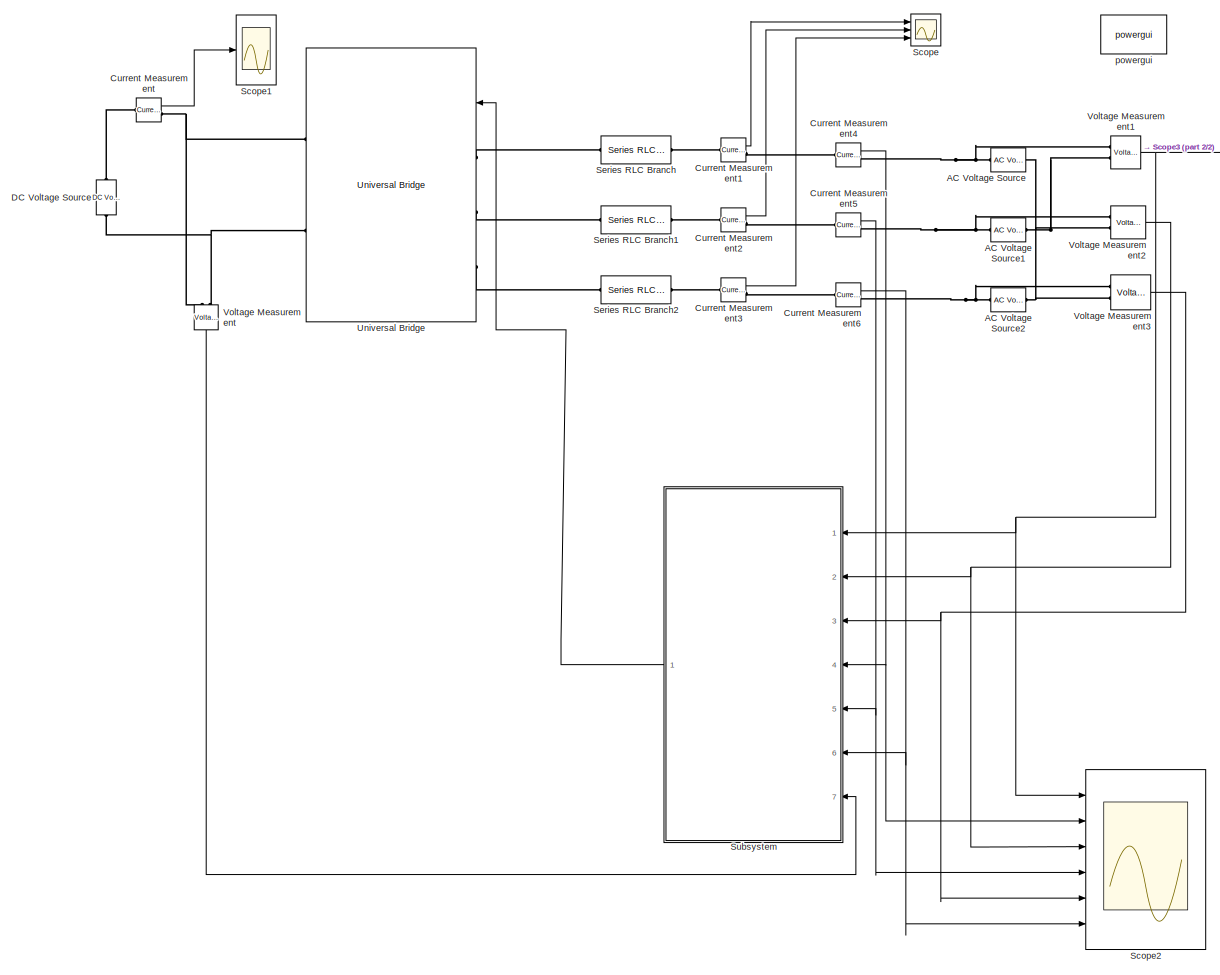
[diagram: root canvas - part 1/2, most of the canvas]
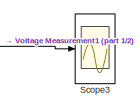
[diagram: root canvas - part 2/2, top right region]
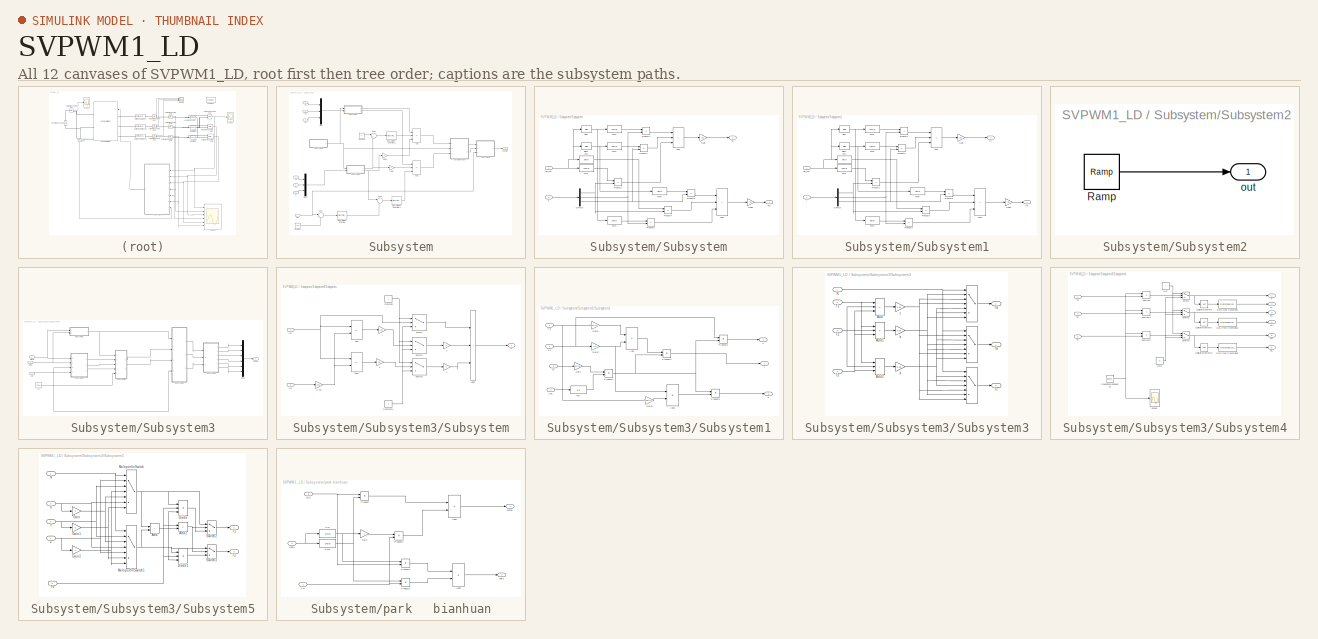
[diagram: thumbnail index - all 12 canvases of the model, root first then tree order]
MODEL SVPWM1_LD
KIND model
BLOCK [Reference] AC Voltage Source  REF=powerlib/Electrical\nSources/AC Voltage Source
  Amplitude = 380
  BusType = swing
  Frequency = 50
  Measurements = None
  Phase = 90
  Ports = [0, 0, 0, 0, 0, 1, 1]
  Pref = 10e3
  Qmax = +inf
  Qmin = -inf
  Qref = 0
  RTWMemSecDataConstants = Inherit from model
  RTWMemSecDataInternal = Inherit from model
  RTWMemSecDataParameters = Inherit from model
  RTWMemSecFuncExecute = Inherit from model
  RTWMemSecFuncInitTerm = Inherit from model
  SID = 1
  SampleTime = 0
  SourceBlock = powerlib/Electrical\nSources/AC Voltage Source
  SourceProductBaseCode = PS
  SourceType = AC Voltage Source
BLOCK [Reference] AC Voltage Source1  REF=powerlib/Electrical\nSources/AC Voltage Source
  Amplitude = 380
  BusType = swing
  Frequency = 50
  Measurements = None
  NameLocation = top
  Phase = 90-120
  Ports = [0, 0, 0, 0, 0, 1, 1]
  Pref = 10e3
  Qmax = +inf
  Qmin = -inf
  Qref = 0
  RTWMemSecDataConstants = Inherit from model
  RTWMemSecDataInternal = Inherit from model
  RTWMemSecDataParameters = Inherit from model
  RTWMemSecFuncExecute = Inherit from model
  RTWMemSecFuncInitTerm = Inherit from model
  SID = 2
  SampleTime = 0
  SourceBlock = powerlib/Electrical\nSources/AC Voltage Source
  SourceProductBaseCode = PS
  SourceType = AC Voltage Source
BLOCK [Reference] AC Voltage Source2  REF=powerlib/Electrical\nSources/AC Voltage Source
  Amplitude = 380
  BusType = swing
  Frequency = 50
  Measurements = None
  NameLocation = top
  Phase = 90+120
  Ports = [0, 0, 0, 0, 0, 1, 1]
  Pref = 10e3
  Qmax = +inf
  Qmin = -inf
  Qref = 0
  RTWMemSecDataConstants = Inherit from model
  RTWMemSecDataInternal = Inherit from model
  RTWMemSecDataParameters = Inherit from model
  RTWMemSecFuncExecute = Inherit from model
  RTWMemSecFuncInitTerm = Inherit from model
  SID = 3
  SampleTime = 0
  SourceBlock = powerlib/Electrical\nSources/AC Voltage Source
  SourceProductBaseCode = PS
  SourceType = AC Voltage Source
BLOCK [Reference] Current Measurement  REF=powerlib/Measurements/Current Measurement
  OutputType = Complex
  PSBequivalent = 0
  PhasorSimulation = off
  Ports = [0, 1, 0, 0, 0, 1, 1]
  RTWMemSecDataConstants = Inherit from model
  RTWMemSecDataInternal = Inherit from model
  RTWMemSecDataParameters = Inherit from model
  RTWMemSecFuncExecute = Inherit from model
  RTWMemSecFuncInitTerm = Inherit from model
  SID = 4
  SourceBlock = powerlib/Measurements/Current Measurement
  SourceProductBaseCode = PS
  SourceType = Current Measurement
BLOCK [Reference] Current Measurement1  REF=powerlib/Measurements/Current Measurement
  OutputType = Complex
  PSBequivalent = 0
  PhasorSimulation = off
  Ports = [0, 1, 0, 0, 0, 1, 1]
  RTWMemSecDataConstants = Inherit from model
  RTWMemSecDataInternal = Inherit from model
  RTWMemSecDataParameters = Inherit from model
  RTWMemSecFuncExecute = Inherit from model
  RTWMemSecFuncInitTerm = Inherit from model
  SID = 5
  SourceBlock = powerlib/Measurements/Current Measurement
  SourceProductBaseCode = PS
  SourceType = Current Measurement
BLOCK [Reference] Current Measurement2  REF=powerlib/Measurements/Current Measurement
  OutputType = Complex
  PSBequivalent = 0
  PhasorSimulation = off
  Ports = [0, 1, 0, 0, 0, 1, 1]
  RTWMemSecDataConstants = Inherit from model
  RTWMemSecDataInternal = Inherit from model
  RTWMemSecDataParameters = Inherit from model
  RTWMemSecFuncExecute = Inherit from model
  RTWMemSecFuncInitTerm = Inherit from model
  SID = 6
  SourceBlock = powerlib/Measurements/Current Measurement
  SourceProductBaseCode = PS
  SourceType = Current Measurement
BLOCK [Reference] Current Measurement3  REF=powerlib/Measurements/Current Measurement
  OutputType = Complex
  PSBequivalent = 0
  PhasorSimulation = off
  Ports = [0, 1, 0, 0, 0, 1, 1]
  RTWMemSecDataConstants = Inherit from model
  RTWMemSecDataInternal = Inherit from model
  RTWMemSecDataParameters = Inherit from model
  RTWMemSecFuncExecute = Inherit from model
  RTWMemSecFuncInitTerm = Inherit from model
  SID = 7
  SourceBlock = powerlib/Measurements/Current Measurement
  SourceProductBaseCode = PS
  SourceType = Current Measurement
BLOCK [Reference] Current Measurement4  REF=powerlib/Measurements/Current Measurement
  OutputType = Complex
  PSBequivalent = 0
  PhasorSimulation = off
  Ports = [0, 1, 0, 0, 0, 1, 1]
  RTWMemSecDataConstants = Inherit from model
  RTWMemSecDataInternal = Inherit from model
  RTWMemSecDataParameters = Inherit from model
  RTWMemSecFuncExecute = Inherit from model
  RTWMemSecFuncInitTerm = Inherit from model
  SID = 8
  SourceBlock = powerlib/Measurements/Current Measurement
  SourceProductBaseCode = PS
  SourceType = Current Measurement
BLOCK [Reference] Current Measurement5  REF=powerlib/Measurements/Current Measurement
  OutputType = Complex
  PSBequivalent = 0
  PhasorSimulation = off
  Ports = [0, 1, 0, 0, 0, 1, 1]
  RTWMemSecDataConstants = Inherit from model
  RTWMemSecDataInternal = Inherit from model
  RTWMemSecDataParameters = Inherit from model
  RTWMemSecFuncExecute = Inherit from model
  RTWMemSecFuncInitTerm = Inherit from model
  SID = 9
  SourceBlock = powerlib/Measurements/Current Measurement
  SourceProductBaseCode = PS
  SourceType = Current Measurement
BLOCK [Reference] Current Measurement6  REF=powerlib/Measurements/Current Measurement
  OutputType = Complex
  PSBequivalent = 0
  PhasorSimulation = off
  Ports = [0, 1, 0, 0, 0, 1, 1]
  RTWMemSecDataConstants = Inherit from model
  RTWMemSecDataInternal = Inherit from model
  RTWMemSecDataParameters = Inherit from model
  RTWMemSecFuncExecute = Inherit from model
  RTWMemSecFuncInitTerm = Inherit from model
  SID = 10
  SourceBlock = powerlib/Measurements/Current Measurement
  SourceProductBaseCode = PS
  SourceType = Current Measurement
BLOCK [Reference] DC Voltage Source  REF=powerlib/Electrical\nSources/DC Voltage Source
  Amplitude = 100
  Measurements = None
  NameLocation = right
  Ports = [0, 0, 0, 0, 0, 1, 1]
  RTWMemSecDataConstants = Inherit from model
  RTWMemSecDataInternal = Inherit from model
  RTWMemSecDataParameters = Inherit from model
  RTWMemSecFuncExecute = Inherit from model
  RTWMemSecFuncInitTerm = Inherit from model
  SID = 11
  SourceBlock = powerlib/Electrical\nSources/DC Voltage Source
  SourceProductBaseCode = PS
  SourceType = DC Voltage Source
BLOCK [Scope] Scope
  Floating = off
  NumInputPorts = 3
  Ports = [3]
  SID = 12
  ScopeSpecificationString = C++SS(StrPVP('Location','[5, 48, 1365, 727]'),StrPVP('Open','off'),StrPVP('ZoomMode','xonly'),MxPVP('AxesTitles',54,'struct(''axes1'',''%<SignalLabel>'',''axes2'',''%<SignalLabel>'',''axes3'',''%<SignalLabel>'')'),StrPVP('YMin','-5~-5~-5'),StrPVP('YMax','5~5~5'),StrPVP('DataFormat','StructureWithTime'),StrPVP('LimitDataPoints','off'),StrPVP('BlockParamSampleTime','0'),StrPVP('Decimation','1'),StrP...<+34ch>
BLOCK [Scope] Scope1
  Floating = off
  NumInputPorts = 1
  Ports = [1]
  SID = 13
  ScopeSpecificationString = Simulink.scopes.TimeScopeBlockCfg('CurrentConfiguration', extmgr.ConfigurationSet(extmgr.Configuration('Core','General UI',true),extmgr.Configuration('Core','Source UI',true),extmgr.Configuration('Sources','WiredSimulink',true,'DataLoggingVariableName','ScopeData1','DataLoggingSaveFormat','StructureWithTime','DataLoggingDecimation','1','DataLoggingDecimateData',true),extmgr.Configuration('Visuals'...<+1669ch>
BLOCK [Scope] Scope2
  Floating = off
  NumInputPorts = 6
  Ports = [6]
  SID = 14
  ScopeSpecificationString = C++SS(StrPVP('Location','[5, 48, 1365, 727]'),StrPVP('Open','off'),StrPVP('ZoomMode','xonly'),MxPVP('AxesTitles',54,'struct(''axes1'',''%<SignalLabel>'',''axes2'',''%<SignalLabel>'',''axes3'',''%<SignalLabel>'',''axes4'',''%<SignalLabel>'',''axes5'',''%<SignalLabel>'',''axes6'',''%<SignalLabel>'')'),StrPVP('YMin','-5~-5~-5~-5~-5~-5'),StrPVP('YMax','5~5~5~5~5~5'),StrPVP('SaveName','ScopeData2'),Str...<+168ch>
BLOCK [Scope] Scope3
  Floating = off
  NumInputPorts = 1
  Ports = [1]
  SID = 15
  ScopeSpecificationString = C++SS(StrPVP('Location','[5, 48, 1365, 727]'),StrPVP('Open','off'),StrPVP('ZoomMode','yonly'),MxPVP('AxesTitles',54,'struct(''axes1'',''%<SignalLabel>'')'),StrPVP('YMin','327.5'),StrPVP('YMax','380'),StrPVP('SaveName','ScopeData4'),StrPVP('DataFormat','StructureWithTime'),StrPVP('LimitDataPoints','off'),StrPVP('BlockParamSampleTime','0'),StrPVP('Decimation','1'),StrPVP('BlockParamSampleInput','off...<+3ch>
BLOCK [Reference] Series RLC Branch  REF=powerlib/Elements/Series RLC Branch
  BranchType = RL
  Capacitance = 1.0
  Inductance = 6e-3
  InitialCurrent = 0
  InitialVoltage = 0
  LConnTagsString = __new0
  Measurements = None
  Ports = [0, 0, 0, 0, 0, 1, 1]
  RConnTagsString = __new0
  Resistance = 1
  SID = 16
  SetiL0 = off
  Setx0 = off
  SourceBlock = powerlib/Elements/Series RLC Branch
  SourceProductBaseCode = PS
  SourceType = Series RLC Branch
BLOCK [Reference] Series RLC Branch1  REF=powerlib/Elements/Series RLC Branch
  BranchType = RL
  Capacitance = 1.0
  Inductance = 6e-3
  InitialCurrent = 0
  InitialVoltage = 0
  LConnTagsString = __new0
  Measurements = None
  Ports = [0, 0, 0, 0, 0, 1, 1]
  RConnTagsString = __new0
  Resistance = 1
  SID = 17
  SetiL0 = off
  Setx0 = off
  SourceBlock = powerlib/Elements/Series RLC Branch
  SourceProductBaseCode = PS
  SourceType = Series RLC Branch
BLOCK [Reference] Series RLC Branch2  REF=powerlib/Elements/Series RLC Branch
  BranchType = RL
  Capacitance = 1.0
  Inductance = 6e-3
  InitialCurrent = 0
  InitialVoltage = 0
  LConnTagsString = __new0
  Measurements = None
  Ports = [0, 0, 0, 0, 0, 1, 1]
  RConnTagsString = __new0
  Resistance = 1
  SID = 18
  SetiL0 = off
  Setx0 = off
  SourceBlock = powerlib/Elements/Series RLC Branch
  SourceProductBaseCode = PS
  SourceType = Series RLC Branch
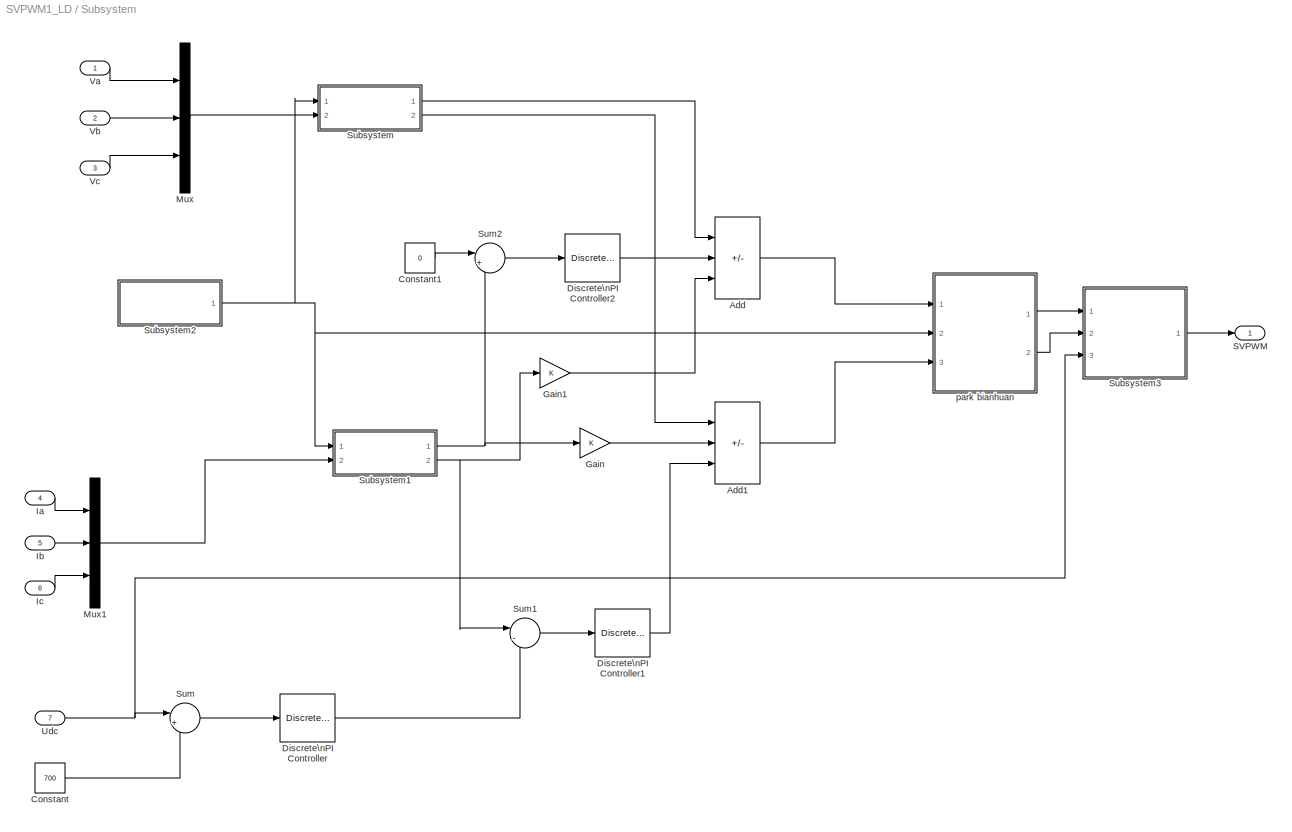
BLOCK [SubSystem] Subsystem
  Ports = [7, 1]
  RequestExecContextInheritance = off
  SID = 19
BLOCK [Sum] Subsystem/Add
  IconShape = rectangular
  Inputs = +--
  Ports = [3, 1]
  SID = 27
BLOCK [Sum] Subsystem/Add1
  IconShape = rectangular
  Inputs = ++-
  Ports = [3, 1]
  SID = 28
BLOCK [Constant] Subsystem/Constant
  SID = 29
  Value = 700
BLOCK [Constant] Subsystem/Constant1
  SID = 30
  Value = 0
BLOCK [Reference] Subsystem/Discrete\nPI Controller  REF=powerlib_extras/Discrete \nControl Blocks/Discrete\nPI Controller
  Init = 0
  Ki = 1
  Kp = 0.1
  Par_Limits = [1e6 -1e6]
  Ports = [1, 1]
  RTWMemSecDataConstants = Inherit from model
  RTWMemSecDataInternal = Inherit from model
  RTWMemSecDataParameters = Inherit from model
  RTWMemSecFuncExecute = Inherit from model
  RTWMemSecFuncInitTerm = Inherit from model
  SID = 31
  SourceBlock = powerlib_extras/Discrete \nControl Blocks/Discrete\nPI Controller
  SourceProductBaseCode = PS
  SourceType = Discrete PI Controller
  Ts = 50e-6
BLOCK [Reference] Subsystem/Discrete\nPI Controller1  REF=powerlib_extras/Discrete \nControl Blocks/Discrete\nPI Controller
  Init = 0
  Ki = 1
  Kp = 0.1
  Par_Limits = [1e6 -1e6]
  Ports = [1, 1]
  RTWMemSecDataConstants = Inherit from model
  RTWMemSecDataInternal = Inherit from model
  RTWMemSecDataParameters = Inherit from model
  RTWMemSecFuncExecute = Inherit from model
  RTWMemSecFuncInitTerm = Inherit from model
  SID = 32
  SourceBlock = powerlib_extras/Discrete \nControl Blocks/Discrete\nPI Controller
  SourceProductBaseCode = PS
  SourceType = Discrete PI Controller
  Ts = 50e-6
BLOCK [Reference] Subsystem/Discrete\nPI Controller2  REF=powerlib_extras/Discrete \nControl Blocks/Discrete\nPI Controller
  Init = 0
  Ki = 1
  Kp = 0.1
  Par_Limits = [1e6 -1e6]
  Ports = [1, 1]
  RTWMemSecDataConstants = Inherit from model
  RTWMemSecDataInternal = Inherit from model
  RTWMemSecDataParameters = Inherit from model
  RTWMemSecFuncExecute = Inherit from model
  RTWMemSecFuncInitTerm = Inherit from model
  SID = 33
  SourceBlock = powerlib_extras/Discrete \nControl Blocks/Discrete\nPI Controller
  SourceProductBaseCode = PS
  SourceType = Discrete PI Controller
  Ts = 50e-6
BLOCK [Gain] Subsystem/Gain
  SID = 34
BLOCK [Gain] Subsystem/Gain1
  SID = 35
BLOCK [Inport] Subsystem/Ia
  Port = 4
  SID = 23
BLOCK [Inport] Subsystem/Ib
  Port = 5
  SID = 24
BLOCK [Inport] Subsystem/Ic
  Port = 6
  SID = 25
BLOCK [Mux] Subsystem/Mux
  DisplayOption = bar
  Inputs = 3
  Ports = [3, 1]
  SID = 36
BLOCK [Mux] Subsystem/Mux1
  DisplayOption = bar
  Inputs = 3
  Ports = [3, 1]
  SID = 37
BLOCK [Outport] Subsystem/SVPWM
  SID = 212
BLOCK [SubSystem] Subsystem/Subsystem
  Ports = [2, 2]
  RequestExecContextInheritance = off
  SID = 38
BLOCK [Sum] Subsystem/Subsystem/Add1
  IconShape = rectangular
  Inputs = +++
  Ports = [3, 1]
  SID = 41
BLOCK [Sum] Subsystem/Subsystem/Add2
  IconShape = rectangular
  Inputs = +++
  Ports = [3, 1]
  SID = 42
BLOCK [Bias] Subsystem/Subsystem/Bias
  Bias = -2*pi/3
  SID = 43
  SaturateOnIntegerOverflow = off
BLOCK [Bias] Subsystem/Subsystem/Bias1
  Bias = 2*pi/3
  SID = 44
  SaturateOnIntegerOverflow = off
BLOCK [Demux] Subsystem/Subsystem/Demux
  Outputs = 3
  Ports = [1, 3]
  SID = 45
BLOCK [Fcn] Subsystem/Subsystem/Fcn
  Expr = sin(u)
  SID = 46
BLOCK [Fcn] Subsystem/Subsystem/Fcn1
  Expr = cos(u)
  SID = 47
BLOCK [Fcn] Subsystem/Subsystem/Fcn2
  Expr = cos(u)
  SID = 48
BLOCK [Fcn] Subsystem/Subsystem/Fcn3
  Expr = cos(u)
  SID = 49
BLOCK [Fcn] Subsystem/Subsystem/Fcn4
  Expr = sin(u)
  SID = 50
BLOCK [Fcn] Subsystem/Subsystem/Fcn5
  Expr = sin(u)
  SID = 51
BLOCK [Gain] Subsystem/Subsystem/Gain
  Gain = 2/3
  SID = 52
BLOCK [Gain] Subsystem/Subsystem/Gain1
  Gain = -2/3
  SID = 53
BLOCK [Product] Subsystem/Subsystem/Product1
  Ports = [2, 1]
  RndMeth = Zero
  SID = 54
BLOCK [Product] Subsystem/Subsystem/Product2
  Ports = [2, 1]
  RndMeth = Zero
  SID = 55
BLOCK [Product] Subsystem/Subsystem/Product3
  Ports = [2, 1]
  RndMeth = Zero
  SID = 56
BLOCK [Product] Subsystem/Subsystem/Product4
  Ports = [2, 1]
  RndMeth = Zero
  SID = 57
BLOCK [Product] Subsystem/Subsystem/Product5
  Ports = [2, 1]
  RndMeth = Zero
  SID = 58
BLOCK [Product] Subsystem/Subsystem/Product6
  Ports = [2, 1]
  RndMeth = Zero
  SID = 59
BLOCK [Outport] Subsystem/Subsystem/Vd
  Port = 2
  SID = 61
BLOCK [Outport] Subsystem/Subsystem/Vq1
  SID = 60
BLOCK [Inport] Subsystem/Subsystem/sin_cos
  SID = 39
BLOCK [Inport] Subsystem/Subsystem/v
  Port = 2
  SID = 40
BLOCK [SubSystem] Subsystem/Subsystem1
  Ports = [2, 2]
  RequestExecContextInheritance = off
  SID = 62
BLOCK [Sum] Subsystem/Subsystem1/Add1
  IconShape = rectangular
  Inputs = +++
  Ports = [3, 1]
  SID = 65
BLOCK [Sum] Subsystem/Subsystem1/Add2
  IconShape = rectangular
  Inputs = +++
  Ports = [3, 1]
  SID = 66
BLOCK [Bias] Subsystem/Subsystem1/Bias
  Bias = -2*pi/3
  SID = 67
  SaturateOnIntegerOverflow = off
BLOCK [Bias] Subsystem/Subsystem1/Bias1
  Bias = 2*pi/3
  SID = 68
  SaturateOnIntegerOverflow = off
BLOCK [Demux] Subsystem/Subsystem1/Demux
  Outputs = 3
  Ports = [1, 3]
  SID = 69
BLOCK [Fcn] Subsystem/Subsystem1/Fcn
  Expr = sin(u)
  SID = 70
BLOCK [Fcn] Subsystem/Subsystem1/Fcn1
  Expr = cos(u)
  SID = 71
BLOCK [Fcn] Subsystem/Subsystem1/Fcn2
  Expr = cos(u)
  SID = 72
BLOCK [Fcn] Subsystem/Subsystem1/Fcn3
  Expr = cos(u)
  SID = 73
BLOCK [Fcn] Subsystem/Subsystem1/Fcn4
  Expr = sin(u)
  SID = 74
BLOCK [Fcn] Subsystem/Subsystem1/Fcn5
  Expr = sin(u)
  SID = 75
BLOCK [Gain] Subsystem/Subsystem1/Gain
  Gain = 2/3
  SID = 76
BLOCK [Gain] Subsystem/Subsystem1/Gain1
  Gain = -2/3
  SID = 77
BLOCK [Inport] Subsystem/Subsystem1/I
  Port = 2
  SID = 64
BLOCK [Outport] Subsystem/Subsystem1/Id
  Port = 2
  SID = 85
BLOCK [Outport] Subsystem/Subsystem1/Iq1
  SID = 84
BLOCK [Product] Subsystem/Subsystem1/Product1
  Ports = [2, 1]
  RndMeth = Zero
  SID = 78
BLOCK [Product] Subsystem/Subsystem1/Product2
  Ports = [2, 1]
  RndMeth = Zero
  SID = 79
BLOCK [Product] Subsystem/Subsystem1/Product3
  Ports = [2, 1]
  RndMeth = Zero
  SID = 80
BLOCK [Product] Subsystem/Subsystem1/Product4
  Ports = [2, 1]
  RndMeth = Zero
  SID = 81
BLOCK [Product] Subsystem/Subsystem1/Product5
  Ports = [2, 1]
  RndMeth = Zero
  SID = 82
BLOCK [Product] Subsystem/Subsystem1/Product6
  Ports = [2, 1]
  RndMeth = Zero
  SID = 83
BLOCK [Inport] Subsystem/Subsystem1/sin_cos
  SID = 63
BLOCK [SubSystem] Subsystem/Subsystem2
  Ports = [0, 1]
  RequestExecContextInheritance = off
  SID = 86
BLOCK [Reference] Subsystem/Subsystem2/Ramp  REF=simulink/Sources/Ramp
  InitialOutput = 0
  Ports = [0, 1]
  RTWMemSecDataConstants = Inherit from model
  RTWMemSecDataInternal = Inherit from model
  RTWMemSecDataParameters = Inherit from model
  RTWMemSecFuncExecute = Inherit from model
  RTWMemSecFuncInitTerm = Inherit from model
  SID = 87
  SourceBlock = simulink/Sources/Ramp
  SourceProductBaseCode = SL
  SourceType = Ramp
  VectorParams1D = on
  slope = 100*pi
  start = 0
BLOCK [Outport] Subsystem/Subsystem2/out
  SID = 88
BLOCK [SubSystem] Subsystem/Subsystem3
  Ports = [3, 1]
  RequestExecContextInheritance = off
  SID = 89
BLOCK [Mux] Subsystem/Subsystem3/Mux1
  DisplayOption = bar
  Inputs = 6
  Ports = [6, 1]
  SID = 93
BLOCK [SubSystem] Subsystem/Subsystem3/Subsystem
  Ports = [2, 1]
  RequestExecContextInheritance = off
  SID = 94
BLOCK [Gain] Subsystem/Subsystem3/Subsystem/1
  Gain = 0.5
  SID = 97
BLOCK [Gain] Subsystem/Subsystem3/Subsystem/1.732
  Gain = 1.732
  SID = 98
BLOCK [Gain] Subsystem/Subsystem3/Subsystem/2
  Gain = 0.5
  SID = 99
BLOCK [Gain] Subsystem/Subsystem3/Subsystem/3
  Gain = 2
  SID = 100
BLOCK [Gain] Subsystem/Subsystem3/Subsystem/4
  Gain = 4
  SID = 101
BLOCK [Sum] Subsystem/Subsystem3/Subsystem/Add
  IconShape = rectangular
  Inputs = -+
  Ports = [2, 1]
  SID = 102
BLOCK [Sum] Subsystem/Subsystem3/Subsystem/Add1
  IconShape = rectangular
  Inputs = --
  Ports = [2, 1]
  SID = 103
BLOCK [Sum] Subsystem/Subsystem3/Subsystem/Add2
  IconShape = rectangular
  Inputs = +++
  Ports = [3, 1]
  SID = 104
BLOCK [Constant] Subsystem/Subsystem3/Subsystem/Constant
  SID = 105
BLOCK [Constant] Subsystem/Subsystem3/Subsystem/Constant1
  SID = 106
  Value = 0
BLOCK [Inport] Subsystem/Subsystem3/Subsystem/In1
  SID = 95
BLOCK [Inport] Subsystem/Subsystem3/Subsystem/In2
  Port = 2
  SID = 96
BLOCK [Outport] Subsystem/Subsystem3/Subsystem/N
  SID = 110
BLOCK [Switch] Subsystem/Subsystem3/Subsystem/Switch
  Criteria = u2 > Threshold
  InputSameDT = off
  SID = 107
  SaturateOnIntegerOverflow = off
BLOCK [Switch] Subsystem/Subsystem3/Subsystem/Switch1
  Criteria = u2 > Threshold
  InputSameDT = off
  SID = 108
  SaturateOnIntegerOverflow = off
BLOCK [Switch] Subsystem/Subsystem3/Subsystem/Switch2
  Criteria = u2 > Threshold
  InputSameDT = off
  SID = 109
  SaturateOnIntegerOverflow = off
BLOCK [SubSystem] Subsystem/Subsystem3/Subsystem1
  Ports = [4, 3]
  RequestExecContextInheritance = off
  SID = 111
BLOCK [Sum] Subsystem/Subsystem3/Subsystem1/Add
  IconShape = rectangular
  Ports = [2, 1]
  SID = 116
BLOCK [Sum] Subsystem/Subsystem3/Subsystem1/Add1
  IconShape = rectangular
  Ports = [2, 1]
  SID = 117
BLOCK [Fcn] Subsystem/Subsystem3/Subsystem1/Fcn
  Expr = 1/u
  SID = 118
BLOCK [Gain] Subsystem/Subsystem3/Subsystem1/Gain
  Gain = sqrt(3)
  SID = 119
BLOCK [Gain] Subsystem/Subsystem3/Subsystem1/Gain1
  Gain = sqrt(3)/2
  SID = 120
BLOCK [Gain] Subsystem/Subsystem3/Subsystem1/Gain2
  Gain = 1/2
  SID = 121
BLOCK [Gain] Subsystem/Subsystem3/Subsystem1/Gain3
  Gain = -sqrt(3)/2
  SID = 122
BLOCK [Product] Subsystem/Subsystem3/Subsystem1/Product1
  Ports = [2, 1]
  RndMeth = Zero
  SID = 123
BLOCK [Product] Subsystem/Subsystem3/Subsystem1/Product2
  Ports = [2, 1]
  RndMeth = Zero
  SID = 124
BLOCK [Product] Subsystem/Subsystem3/Subsystem1/Product3
  Ports = [2, 1]
  RndMeth = Zero
  SID = 125
BLOCK [Product] Subsystem/Subsystem3/Subsystem1/Product4
  Ports = [2, 1]
  RndMeth = Zero
  SID = 126
BLOCK [Inport] Subsystem/Subsystem3/Subsystem1/Ts
  Port = 3
  SID = 114
BLOCK [Inport] Subsystem/Subsystem3/Subsystem1/Udc
  Port = 4
  SID = 115
BLOCK [Inport] Subsystem/Subsystem3/Subsystem1/Va
  SID = 112
BLOCK [Inport] Subsystem/Subsystem3/Subsystem1/Vb
  Port = 2
  SID = 113
BLOCK [Outport] Subsystem/Subsystem3/Subsystem1/X
  SID = 127
BLOCK [Outport] Subsystem/Subsystem3/Subsystem1/Y
  Port = 2
  SID = 128
BLOCK [Outport] Subsystem/Subsystem3/Subsystem1/Z
  Port = 3
  SID = 129
BLOCK [SubSystem] Subsystem/Subsystem3/Subsystem3
  Ports = [4, 3]
  RequestExecContextInheritance = off
  SID = 130
BLOCK [MultiPortSwitch] Subsystem/Subsystem3/Subsystem3/ 
  InputSameDT = off
  Inputs = 6
  Ports = [7, 1]
  SID = 135
  SaturateOnIntegerOverflow = off
BLOCK [MultiPortSwitch] Subsystem/Subsystem3/Subsystem3/  
  InputSameDT = off
  Inputs = 6
  Ports = [7, 1]
  SID = 136
  SaturateOnIntegerOverflow = off
BLOCK [MultiPortSwitch] Subsystem/Subsystem3/Subsystem3/    
  InputSameDT = off
  Inputs = 6
  Ports = [7, 1]
  SID = 137
  SaturateOnIntegerOverflow = off
BLOCK [Sum] Subsystem/Subsystem3/Subsystem3/Add
  IconShape = rectangular
  Inputs = --+
  Ports = [3, 1]
  SID = 138
BLOCK [Sum] Subsystem/Subsystem3/Subsystem3/Add1
  IconShape = rectangular
  Inputs = +-+
  Ports = [3, 1]
  SID = 139
BLOCK [Sum] Subsystem/Subsystem3/Subsystem3/Add2
  IconShape = rectangular
  Inputs = +++
  Ports = [3, 1]
  SID = 140
BLOCK [Inport] Subsystem/Subsystem3/Subsystem3/N
  SID = 131
BLOCK [Inport] Subsystem/Subsystem3/Subsystem3/T1
  Port = 2
  SID = 132
BLOCK [Inport] Subsystem/Subsystem3/Subsystem3/T2
  Port = 3
  SID = 133
BLOCK [Outport] Subsystem/Subsystem3/Subsystem3/Ta
  SID = 144
BLOCK [Outport] Subsystem/Subsystem3/Subsystem3/Tb
  Port = 2
  SID = 145
BLOCK [Outport] Subsystem/Subsystem3/Subsystem3/Tc
  Port = 3
  SID = 146
BLOCK [Inport] Subsystem/Subsystem3/Subsystem3/Ts
  Port = 4
  SID = 134
BLOCK [Gain] Subsystem/Subsystem3/Subsystem3/a
  Gain = 0.25
  SID = 141
BLOCK [Gain] Subsystem/Subsystem3/Subsystem3/b
  Gain = 0.25
  SID = 142
BLOCK [Gain] Subsystem/Subsystem3/Subsystem3/c
  Gain = 0.25
  SID = 143
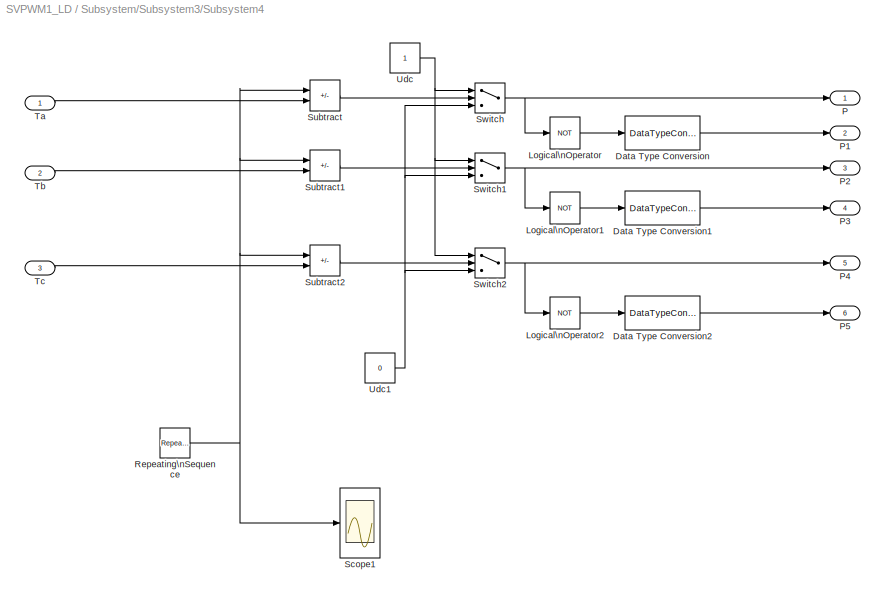
BLOCK [SubSystem] Subsystem/Subsystem3/Subsystem4
  Ports = [3, 6]
  RequestExecContextInheritance = off
  SID = 147
BLOCK [DataTypeConversion] Subsystem/Subsystem3/Subsystem4/Data Type Conversion
  OutDataTypeStr = double
  RndMeth = Floor
  SID = 151
  SaturateOnIntegerOverflow = off
BLOCK [DataTypeConversion] Subsystem/Subsystem3/Subsystem4/Data Type Conversion1
  OutDataTypeStr = double
  RndMeth = Floor
  SID = 152
  SaturateOnIntegerOverflow = off
BLOCK [DataTypeConversion] Subsystem/Subsystem3/Subsystem4/Data Type Conversion2
  OutDataTypeStr = double
  RndMeth = Floor
  SID = 153
  SaturateOnIntegerOverflow = off
BLOCK [Logic] Subsystem/Subsystem3/Subsystem4/Logical\nOperator
  AllPortsSameDT = off
  Operator = NOT
  OutDataTypeStr = boolean
  Ports = [1, 1]
  SID = 154
BLOCK [Logic] Subsystem/Subsystem3/Subsystem4/Logical\nOperator1
  AllPortsSameDT = off
  Operator = NOT
  OutDataTypeStr = boolean
  Ports = [1, 1]
  SID = 155
BLOCK [Logic] Subsystem/Subsystem3/Subsystem4/Logical\nOperator2
  AllPortsSameDT = off
  Operator = NOT
  OutDataTypeStr = boolean
  Ports = [1, 1]
  SID = 156
BLOCK [Outport] Subsystem/Subsystem3/Subsystem4/P
  SID = 167
BLOCK [Outport] Subsystem/Subsystem3/Subsystem4/P1
  Port = 2
  SID = 168
BLOCK [Outport] Subsystem/Subsystem3/Subsystem4/P2
  Port = 3
  SID = 169
BLOCK [Outport] Subsystem/Subsystem3/Subsystem4/P3
  Port = 4
  SID = 170
BLOCK [Outport] Subsystem/Subsystem3/Subsystem4/P4
  Port = 5
  SID = 171
BLOCK [Outport] Subsystem/Subsystem3/Subsystem4/P5
  Port = 6
  SID = 172
BLOCK [Reference] Subsystem/Subsystem3/Subsystem4/Repeating\nSequence  REF=simulink/Sources/Repeating\nSequence
  Ports = [0, 1]
  RTWMemSecDataConstants = Inherit from model
  RTWMemSecDataInternal = Inherit from model
  RTWMemSecDataParameters = Inherit from model
  RTWMemSecFuncExecute = Inherit from model
  RTWMemSecFuncInitTerm = Inherit from model
  SID = 157
  SourceBlock = simulink/Sources/Repeating\nSequence
  SourceProductBaseCode = SL
  SourceType = Repeating table
  rep_seq_t = [0  1e-4  2e-4]
  rep_seq_y = [0  1e-4   0]
BLOCK [Scope] Subsystem/Subsystem3/Subsystem4/Scope1
  Floating = off
  NumInputPorts = 1
  Ports = [1]
  SID = 158
  ScopeSpecificationString = C++SS(StrPVP('Location','[5, 48, 1365, 727]'),StrPVP('Open','off'),MxPVP('AxesTitles',54,'struct(''axes1'',''%<SignalLabel>'')'),StrPVP('SaveName','ScopeData3'),StrPVP('DataFormat','StructureWithTime'),StrPVP('BlockParamSampleTime','0'),StrPVP('LimitDataPoints','on'),StrPVP('Decimation','1'),StrPVP('BlockParamSampleInput','off'))
BLOCK [Sum] Subsystem/Subsystem3/Subsystem4/Subtract
  IconShape = rectangular
  Inputs = +-
  Ports = [2, 1]
  SID = 159
BLOCK [Sum] Subsystem/Subsystem3/Subsystem4/Subtract1
  IconShape = rectangular
  Inputs = +-
  Ports = [2, 1]
  SID = 160
BLOCK [Sum] Subsystem/Subsystem3/Subsystem4/Subtract2
  IconShape = rectangular
  Inputs = +-
  Ports = [2, 1]
  SID = 161
BLOCK [Switch] Subsystem/Subsystem3/Subsystem4/Switch
  InputSameDT = off
  SID = 162
  SaturateOnIntegerOverflow = off
BLOCK [Switch] Subsystem/Subsystem3/Subsystem4/Switch1
  InputSameDT = off
  SID = 163
  SaturateOnIntegerOverflow = off
BLOCK [Switch] Subsystem/Subsystem3/Subsystem4/Switch2
  InputSameDT = off
  SID = 164
  SaturateOnIntegerOverflow = off
BLOCK [Inport] Subsystem/Subsystem3/Subsystem4/Ta
  SID = 148
BLOCK [Inport] Subsystem/Subsystem3/Subsystem4/Tb
  Port = 2
  SID = 149
BLOCK [Inport] Subsystem/Subsystem3/Subsystem4/Tc
  Port = 3
  SID = 150
BLOCK [Constant] Subsystem/Subsystem3/Subsystem4/Udc
  SID = 165
BLOCK [Constant] Subsystem/Subsystem3/Subsystem4/Udc1
  SID = 166
  Value = 0
BLOCK [SubSystem] Subsystem/Subsystem3/Subsystem5
  Ports = [5, 2]
  RequestExecContextInheritance = off
  SID = 173
BLOCK [Sum] Subsystem/Subsystem3/Subsystem5/Add
  IconShape = rectangular
  Ports = [2, 1]
  SID = 179
BLOCK [Sum] Subsystem/Subsystem3/Subsystem5/Add2
  IconShape = rectangular
  Inputs = +-
  Ports = [2, 1]
  SID = 180
BLOCK [Product] Subsystem/Subsystem3/Subsystem5/Divide
  Inputs = **/
  Ports = [3, 1]
  SID = 181
BLOCK [Product] Subsystem/Subsystem3/Subsystem5/Divide1
  Inputs = **/
  Ports = [3, 1]
  SID = 182
BLOCK [Gain] Subsystem/Subsystem3/Subsystem5/Gain
  Gain = -1
  SID = 183
BLOCK [Gain] Subsystem/Subsystem3/Subsystem5/Gain1
  Gain = -1
  SID = 184
BLOCK [Gain] Subsystem/Subsystem3/Subsystem5/Gain2
  Gain = -1
  SID = 185
BLOCK [MultiPortSwitch] Subsystem/Subsystem3/Subsystem5/Multiport\nSwitch
  InputSameDT = off
  Inputs = 6
  Ports = [7, 1]
  SID = 186
  SaturateOnIntegerOverflow = off
BLOCK [MultiPortSwitch] Subsystem/Subsystem3/Subsystem5/Multiport\nSwitch1
  InputSameDT = off
  Inputs = 6
  Ports = [7, 1]
  SID = 187
  SaturateOnIntegerOverflow = off
BLOCK [Inport] Subsystem/Subsystem3/Subsystem5/N
  SID = 174
BLOCK [Switch] Subsystem/Subsystem3/Subsystem5/Switch2
  InputSameDT = off
  SID = 188
  SaturateOnIntegerOverflow = off
BLOCK [Switch] Subsystem/Subsystem3/Subsystem5/Switch3
  InputSameDT = off
  SID = 189
  SaturateOnIntegerOverflow = off
BLOCK [Outport] Subsystem/Subsystem3/Subsystem5/T1
  SID = 190
BLOCK [Outport] Subsystem/Subsystem3/Subsystem5/T2
  Port = 2
  SID = 191
BLOCK [Inport] Subsystem/Subsystem3/Subsystem5/Ts
  Port = 5
  SID = 178
BLOCK [Inport] Subsystem/Subsystem3/Subsystem5/X
  Port = 2
  SID = 175
BLOCK [Inport] Subsystem/Subsystem3/Subsystem5/Y
  Port = 3
  SID = 176
BLOCK [Inport] Subsystem/Subsystem3/Subsystem5/Z
  Port = 4
  SID = 177
BLOCK [Constant] Subsystem/Subsystem3/Ts
  SID = 192
  Value = 0.2e-3
BLOCK [Inport] Subsystem/Subsystem3/Vdc
  Port = 3
  SID = 92
BLOCK [Inport] Subsystem/Subsystem3/alpha
  SID = 90
BLOCK [Inport] Subsystem/Subsystem3/beta
  Port = 2
  SID = 91
BLOCK [Outport] Subsystem/Subsystem3/phase
  SID = 193
BLOCK [Sum] Subsystem/Sum
  Inputs = |+-
  Ports = [2, 1]
  SID = 194
BLOCK [Sum] Subsystem/Sum1
  Inputs = |-+
  Ports = [2, 1]
  SID = 195
BLOCK [Sum] Subsystem/Sum2
  Inputs = |+-
  Ports = [2, 1]
  SID = 196
BLOCK [Inport] Subsystem/Udc
  Port = 7
  SID = 26
BLOCK [Inport] Subsystem/Va
  SID = 20
BLOCK [Inport] Subsystem/Vb
  Port = 2
  SID = 21
BLOCK [Inport] Subsystem/Vc
  Port = 3
  SID = 22
BLOCK [SubSystem] Subsystem/park   bianhuan
  Ports = [3, 2]
  RequestExecContextInheritance = off
  SID = 197
BLOCK [Sum] Subsystem/park   bianhuan/Add1
  IconShape = rectangular
  Ports = [2, 1]
  SID = 201
BLOCK [Sum] Subsystem/park   bianhuan/Add2
  IconShape = rectangular
  Ports = [2, 1]
  SID = 202
BLOCK [Fcn] Subsystem/park   bianhuan/Fcn
  Expr = sin(u)
  SID = 203
BLOCK [Fcn] Subsystem/park   bianhuan/Fcn1
  Expr = cos(u)
  SID = 204
BLOCK [Gain] Subsystem/park   bianhuan/Gain
  Gain = -1
  SID = 205
BLOCK [Product] Subsystem/park   bianhuan/Product
  Ports = [2, 1]
  RndMeth = Zero
  SID = 206
BLOCK [Product] Subsystem/park   bianhuan/Product1
  Ports = [2, 1]
  RndMeth = Zero
  SID = 207
BLOCK [Product] Subsystem/park   bianhuan/Product2
  Ports = [2, 1]
  RndMeth = Zero
  SID = 208
BLOCK [Product] Subsystem/park   bianhuan/Product3
  Ports = [2, 1]
  RndMeth = Zero
  SID = 209
BLOCK [Outport] Subsystem/park   bianhuan/alpha
  SID = 210
BLOCK [Outport] Subsystem/park   bianhuan/beta
  Port = 2
  SID = 211
BLOCK [Inport] Subsystem/park   bianhuan/m//d
  Port = 3
  SID = 200
BLOCK [Inport] Subsystem/park   bianhuan/t//q
  SID = 198
BLOCK [Inport] Subsystem/park   bianhuan/theta
  Port = 2
  SID = 199
BLOCK [Reference] Universal Bridge  REF=powerlib/Power\nElectronics/Universal Bridge
  Arms = 3
  Device = Thyristors
  ForwardVoltage = 0
  ForwardVoltages = [  0  0  ]
  GTOparameters = [ 10e-6 , 20e-6 ]
  IGBTparameters = [ 1e-6 , 2e-6 ]
  Lon = 0
  Measurements = None
  Measurements_2 = None
  NameLocation = top
  Ports = [1, 0, 0, 0, 0, 3, 2]
  RTWMemSecDataConstants = Inherit from model
  RTWMemSecDataInternal = Inherit from model
  RTWMemSecDataParameters = Inherit from model
  RTWMemSecFuncExecute = Inherit from model
  RTWMemSecFuncInitTerm = Inherit from model
  Ron = 1e-3
  SID = 213
  SnubberCapacitance = inf
  SnubberResistance = 1e5
  SourceBlock = powerlib/Power\nElectronics/Universal Bridge
  SourceProductBaseCode = PS
  SourceType = Universal Bridge
  converterType = Rectifier
BLOCK [Reference] Voltage Measurement  REF=powerlib/Measurements/Voltage Measurement
  NameLocation = left
  OutputType = Complex
  PSBequivalent = 0
  PhasorSimulation = off
  Ports = [0, 1, 0, 0, 0, 2]
  RTWMemSecDataConstants = Inherit from model
  RTWMemSecDataInternal = Inherit from model
  RTWMemSecDataParameters = Inherit from model
  RTWMemSecFuncExecute = Inherit from model
  RTWMemSecFuncInitTerm = Inherit from model
  SID = 214
  SourceBlock = powerlib/Measurements/Voltage Measurement
  SourceProductBaseCode = PS
  SourceType = Voltage Measurement
BLOCK [Reference] Voltage Measurement1  REF=powerlib/Measurements/Voltage Measurement
  OutputType = Complex
  PSBequivalent = 0
  PhasorSimulation = off
  Ports = [0, 1, 0, 0, 0, 2]
  RTWMemSecDataConstants = Inherit from model
  RTWMemSecDataInternal = Inherit from model
  RTWMemSecDataParameters = Inherit from model
  RTWMemSecFuncExecute = Inherit from model
  RTWMemSecFuncInitTerm = Inherit from model
  SID = 215
  SourceBlock = powerlib/Measurements/Voltage Measurement
  SourceProductBaseCode = PS
  SourceType = Voltage Measurement
BLOCK [Reference] Voltage Measurement2  REF=powerlib/Measurements/Voltage Measurement
  OutputType = Complex
  PSBequivalent = 0
  PhasorSimulation = off
  Ports = [0, 1, 0, 0, 0, 2]
  RTWMemSecDataConstants = Inherit from model
  RTWMemSecDataInternal = Inherit from model
  RTWMemSecDataParameters = Inherit from model
  RTWMemSecFuncExecute = Inherit from model
  RTWMemSecFuncInitTerm = Inherit from model
  SID = 216
  SourceBlock = powerlib/Measurements/Voltage Measurement
  SourceProductBaseCode = PS
  SourceType = Voltage Measurement
BLOCK [Reference] Voltage Measurement3  REF=powerlib/Measurements/Voltage Measurement
  OutputType = Complex
  PSBequivalent = 0
  PhasorSimulation = off
  Ports = [0, 1, 0, 0, 0, 2]
  RTWMemSecDataConstants = Inherit from model
  RTWMemSecDataInternal = Inherit from model
  RTWMemSecDataParameters = Inherit from model
  RTWMemSecFuncExecute = Inherit from model
  RTWMemSecFuncInitTerm = Inherit from model
  SID = 217
  SourceBlock = powerlib/Measurements/Voltage Measurement
  SourceProductBaseCode = PS
  SourceType = Voltage Measurement
BLOCK [Reference] powergui  REF=powerlib/powergui
  AutomaticDiscreteSolvers = off
  ContinueOnMaxIteration = off
  CurrentSourceSwitches = off
  DisableRonSwitches = off
  DisableSnubberDevices = off
  DisableVfSwitches = off
  DisplayEquations = off
  DisplayStyle = 1
  EnableUseOfTLC = off
  ErrMax = 1e-4
  ExternalGateDelay = off
  Frange = [0:2:500]
  FreqAxis = off
  FunctionMessages = off
  HookPort = off
  Interpol = off
  Iterations = 50
  MaxFrequency = 1000
  NonlinearTolerance = 1e-4
  Pbase = 100e6
  Ports = []
  Priority = 1
  RTWMemSecDataConstants = Inherit from model
  RTWMemSecDataInternal = Inherit from model
  RTWMemSecDataParameters = Inherit from model
  RTWMemSecFuncExecute = Inherit from model
  RTWMemSecFuncInitTerm = Inherit from model
  ResistiveCurrentMeasurement = off
  RestoreLinks = warning
  RmsSteady = 1
  SID = 218
  SPID = off
  SampleTime = 50e-6
  ShowGrid = off
  SolverType = Tustin/Backward Euler (TBE)
  SourceBlock = powerlib/powergui
  SourceProductBaseCode = PS
  SourceType = PSB option menu block
  StartTime = 0.0
  SwTol = 0
  Ts = 0
  UnitsV = kV
  UnitsW = MW
  Xlog = on
  Ylog = off
  ZoomFFT = on
  buscounter = 0
  cycles = 1
  display = off
  echomessages = off
  frequency = 60
  frequencyindice = 50
  frequencyindicesteady = 1
  fundamental = 60
  methode = off
  nMaxIteration = 100
  save = off
  structure = 0
  variable = ZData
  x0status = blocks
LINE Current Measurement1:1 -> Scope:1
LINE Current Measurement2:1 -> Scope:2
LINE Current Measurement3:1 -> Scope:3
NET Current Measurement4:1 -> Scope2:2, Subsystem:4
NET Current Measurement5:1 -> Scope2:4, Subsystem:5
NET Current Measurement6:1 -> Scope2:6, Subsystem:6
LINE Current Measurement:1 -> Scope1:1
LINE Subsystem/Add1:1 -> Subsystem/park   bianhuan:3
LINE Subsystem/Add:1 -> Subsystem/park   bianhuan:1
LINE Subsystem/Constant1:1 -> Subsystem/Sum2:1
LINE Subsystem/Constant:1 -> Subsystem/Sum:2
LINE Subsystem/Discrete\nPI Controller1:1 -> Subsystem/Add1:3
LINE Subsystem/Discrete\nPI Controller2:1 -> Subsystem/Add:2
LINE Subsystem/Discrete\nPI Controller:1 -> Subsystem/Sum1:2
LINE Subsystem/Gain1:1 -> Subsystem/Add:3
LINE Subsystem/Gain:1 -> Subsystem/Add1:2
LINE Subsystem/Ia:1 -> Subsystem/Mux1:1
LINE Subsystem/Ib:1 -> Subsystem/Mux1:2
LINE Subsystem/Ic:1 -> Subsystem/Mux1:3
LINE Subsystem/Mux1:1 -> Subsystem/Subsystem1:2
LINE Subsystem/Mux:1 -> Subsystem/Subsystem:2
LINE Subsystem/Subsystem/Add1:1 -> Subsystem/Subsystem/Gain:1
LINE Subsystem/Subsystem/Add2:1 -> Subsystem/Subsystem/Gain1:1
NET Subsystem/Subsystem/Bias1:1 -> Subsystem/Subsystem/Fcn3:1, Subsystem/Subsystem/Fcn5:1
NET Subsystem/Subsystem/Bias:1 -> Subsystem/Subsystem/Fcn2:1, Subsystem/Subsystem/Fcn4:1
NET Subsystem/Subsystem/Demux:1 -> Subsystem/Subsystem/Product1:2, Subsystem/Subsystem/Product4:2
NET Subsystem/Subsystem/Demux:2 -> Subsystem/Subsystem/Product2:2, Subsystem/Subsystem/Product5:2
NET Subsystem/Subsystem/Demux:3 -> Subsystem/Subsystem/Product3:2, Subsystem/Subsystem/Product6:2
LINE Subsystem/Subsystem/Fcn1:1 -> Subsystem/Subsystem/Product1:1
LINE Subsystem/Subsystem/Fcn2:1 -> Subsystem/Subsystem/Product2:1
LINE Subsystem/Subsystem/Fcn3:1 -> Subsystem/Subsystem/Product3:1
LINE Subsystem/Subsystem/Fcn4:1 -> Subsystem/Subsystem/Product5:1
LINE Subsystem/Subsystem/Fcn5:1 -> Subsystem/Subsystem/Product6:1
LINE Subsystem/Subsystem/Fcn:1 -> Subsystem/Subsystem/Product4:1
LINE Subsystem/Subsystem/Gain1:1 -> Subsystem/Subsystem/Vq1:1
LINE Subsystem/Subsystem/Gain:1 -> Subsystem/Subsystem/Vd:1
LINE Subsystem/Subsystem/Product1:1 -> Subsystem/Subsystem/Add1:3
LINE Subsystem/Subsystem/Product2:1 -> Subsystem/Subsystem/Add1:1
LINE Subsystem/Subsystem/Product3:1 -> Subsystem/Subsystem/Add1:2
LINE Subsystem/Subsystem/Product4:1 -> Subsystem/Subsystem/Add2:2
LINE Subsystem/Subsystem/Product5:1 -> Subsystem/Subsystem/Add2:3
LINE Subsystem/Subsystem/Product6:1 -> Subsystem/Subsystem/Add2:1
NET Subsystem/Subsystem/sin_cos:1 -> Subsystem/Subsystem/Bias1:1, Subsystem/Subsystem/Bias:1, Subsystem/Subsystem/Fcn1:1, Subsystem/Subsystem/Fcn:1
LINE Subsystem/Subsystem/v:1 -> Subsystem/Subsystem/Demux:1
LINE Subsystem/Subsystem1/Add1:1 -> Subsystem/Subsystem1/Gain:1
LINE Subsystem/Subsystem1/Add2:1 -> Subsystem/Subsystem1/Gain1:1
NET Subsystem/Subsystem1/Bias1:1 -> Subsystem/Subsystem1/Fcn3:1, Subsystem/Subsystem1/Fcn5:1
NET Subsystem/Subsystem1/Bias:1 -> Subsystem/Subsystem1/Fcn2:1, Subsystem/Subsystem1/Fcn4:1
NET Subsystem/Subsystem1/Demux:1 -> Subsystem/Subsystem1/Product1:2, Subsystem/Subsystem1/Product4:2
NET Subsystem/Subsystem1/Demux:2 -> Subsystem/Subsystem1/Product2:2, Subsystem/Subsystem1/Product5:2
NET Subsystem/Subsystem1/Demux:3 -> Subsystem/Subsystem1/Product3:2, Subsystem/Subsystem1/Product6:2
LINE Subsystem/Subsystem1/Fcn1:1 -> Subsystem/Subsystem1/Product1:1
LINE Subsystem/Subsystem1/Fcn2:1 -> Subsystem/Subsystem1/Product2:1
LINE Subsystem/Subsystem1/Fcn3:1 -> Subsystem/Subsystem1/Product3:1
LINE Subsystem/Subsystem1/Fcn4:1 -> Subsystem/Subsystem1/Product5:1
LINE Subsystem/Subsystem1/Fcn5:1 -> Subsystem/Subsystem1/Product6:1
LINE Subsystem/Subsystem1/Fcn:1 -> Subsystem/Subsystem1/Product4:1
LINE Subsystem/Subsystem1/Gain1:1 -> Subsystem/Subsystem1/Iq1:1
LINE Subsystem/Subsystem1/Gain:1 -> Subsystem/Subsystem1/Id:1
LINE Subsystem/Subsystem1/I:1 -> Subsystem/Subsystem1/Demux:1
LINE Subsystem/Subsystem1/Product1:1 -> Subsystem/Subsystem1/Add1:3
LINE Subsystem/Subsystem1/Product2:1 -> Subsystem/Subsystem1/Add1:1
LINE Subsystem/Subsystem1/Product3:1 -> Subsystem/Subsystem1/Add1:2
LINE Subsystem/Subsystem1/Product4:1 -> Subsystem/Subsystem1/Add2:2
LINE Subsystem/Subsystem1/Product5:1 -> Subsystem/Subsystem1/Add2:3
LINE Subsystem/Subsystem1/Product6:1 -> Subsystem/Subsystem1/Add2:1
NET Subsystem/Subsystem1/sin_cos:1 -> Subsystem/Subsystem1/Bias1:1, Subsystem/Subsystem1/Bias:1, Subsystem/Subsystem1/Fcn1:1, Subsystem/Subsystem1/Fcn:1
NET Subsystem/Subsystem1:1 -> Subsystem/Gain:1, Subsystem/Sum2:2
NET Subsystem/Subsystem1:2 -> Subsystem/Gain1:1, Subsystem/Sum1:1
LINE Subsystem/Subsystem2/Ramp:1 -> Subsystem/Subsystem2/out:1
NET Subsystem/Subsystem2:1 -> Subsystem/Subsystem1:1, Subsystem/Subsystem:1, Subsystem/park   bianhuan:2
LINE Subsystem/Subsystem3/Mux1:1 -> Subsystem/Subsystem3/phase:1
NET Subsystem/Subsystem3/Subsystem/1.732:1 -> Subsystem/Subsystem3/Subsystem/Add1:2, Subsystem/Subsystem3/Subsystem/Add:2
LINE Subsystem/Subsystem3/Subsystem/1:1 -> Subsystem/Subsystem3/Subsystem/Switch1:2
LINE Subsystem/Subsystem3/Subsystem/2:1 -> Subsystem/Subsystem3/Subsystem/Switch2:2
LINE Subsystem/Subsystem3/Subsystem/3:1 -> Subsystem/Subsystem3/Subsystem/Add2:2
LINE Subsystem/Subsystem3/Subsystem/4:1 -> Subsystem/Subsystem3/Subsystem/Add2:3
LINE Subsystem/Subsystem3/Subsystem/Add1:1 -> Subsystem/Subsystem3/Subsystem/2:1
LINE Subsystem/Subsystem3/Subsystem/Add2:1 -> Subsystem/Subsystem3/Subsystem/N:1
LINE Subsystem/Subsystem3/Subsystem/Add:1 -> Subsystem/Subsystem3/Subsystem/1:1
NET Subsystem/Subsystem3/Subsystem/Constant1:1 -> Subsystem/Subsystem3/Subsystem/Switch1:3, Subsystem/Subsystem3/Subsystem/Switch2:3, Subsystem/Subsystem3/Subsystem/Switch:3
NET Subsystem/Subsystem3/Subsystem/Constant:1 -> Subsystem/Subsystem3/Subsystem/Switch1:1, Subsystem/Subsystem3/Subsystem/Switch2:1, Subsystem/Subsystem3/Subsystem/Switch:1
LINE Subsystem/Subsystem3/Subsystem/In1:1 -> Subsystem/Subsystem3/Subsystem/1.732:1
NET Subsystem/Subsystem3/Subsystem/In2:1 -> Subsystem/Subsystem3/Subsystem/Add1:1, Subsystem/Subsystem3/Subsystem/Add:1, Subsystem/Subsystem3/Subsystem/Switch:2
LINE Subsystem/Subsystem3/Subsystem/Switch1:1 -> Subsystem/Subsystem3/Subsystem/3:1
LINE Subsystem/Subsystem3/Subsystem/Switch2:1 -> Subsystem/Subsystem3/Subsystem/4:1
LINE Subsystem/Subsystem3/Subsystem/Switch:1 -> Subsystem/Subsystem3/Subsystem/Add2:1
LINE Subsystem/Subsystem3/Subsystem1/Add1:1 -> Subsystem/Subsystem3/Subsystem1/Product4:2
LINE Subsystem/Subsystem3/Subsystem1/Add:1 -> Subsystem/Subsystem3/Subsystem1/Product2:1
LINE Subsystem/Subsystem3/Subsystem1/Fcn:1 -> Subsystem/Subsystem3/Subsystem1/Product1:2
LINE Subsystem/Subsystem3/Subsystem1/Gain1:1 -> Subsystem/Subsystem3/Subsystem1/Add:1
NET Subsystem/Subsystem3/Subsystem1/Gain2:1 -> Subsystem/Subsystem3/Subsystem1/Add1:1, Subsystem/Subsystem3/Subsystem1/Add:2
LINE Subsystem/Subsystem3/Subsystem1/Gain3:1 -> Subsystem/Subsystem3/Subsystem1/Add1:2
LINE Subsystem/Subsystem3/Subsystem1/Gain:1 -> Subsystem/Subsystem3/Subsystem1/Product1:1
NET Subsystem/Subsystem3/Subsystem1/Product1:1 -> Subsystem/Subsystem3/Subsystem1/Product2:2, Subsystem/Subsystem3/Subsystem1/Product3:2, Subsystem/Subsystem3/Subsystem1/Product4:1
LINE Subsystem/Subsystem3/Subsystem1/Product2:1 -> Subsystem/Subsystem3/Subsystem1/Y:1
LINE Subsystem/Subsystem3/Subsystem1/Product3:1 -> Subsystem/Subsystem3/Subsystem1/X:1
LINE Subsystem/Subsystem3/Subsystem1/Product4:1 -> Subsystem/Subsystem3/Subsystem1/Z:1
LINE Subsystem/Subsystem3/Subsystem1/Ts:1 -> Subsystem/Subsystem3/Subsystem1/Gain:1
LINE Subsystem/Subsystem3/Subsystem1/Udc:1 -> Subsystem/Subsystem3/Subsystem1/Fcn:1
NET Subsystem/Subsystem3/Subsystem1/Va:1 -> Subsystem/Subsystem3/Subsystem1/Gain1:1, Subsystem/Subsystem3/Subsystem1/Gain3:1
NET Subsystem/Subsystem3/Subsystem1/Vb:1 -> Subsystem/Subsystem3/Subsystem1/Gain2:1, Subsystem/Subsystem3/Subsystem1/Product3:1
LINE Subsystem/Subsystem3/Subsystem1:1 -> Subsystem/Subsystem3/Subsystem5:2
LINE Subsystem/Subsystem3/Subsystem1:2 -> Subsystem/Subsystem3/Subsystem5:3
LINE Subsystem/Subsystem3/Subsystem1:3 -> Subsystem/Subsystem3/Subsystem5:4
LINE Subsystem/Subsystem3/Subsystem3/    :1 -> Subsystem/Subsystem3/Subsystem3/Tc:1
LINE Subsystem/Subsystem3/Subsystem3/  :1 -> Subsystem/Subsystem3/Subsystem3/Ta:1
LINE Subsystem/Subsystem3/Subsystem3/ :1 -> Subsystem/Subsystem3/Subsystem3/Tb:1
LINE Subsystem/Subsystem3/Subsystem3/Add1:1 -> Subsystem/Subsystem3/Subsystem3/b:1
LINE Subsystem/Subsystem3/Subsystem3/Add2:1 -> Subsystem/Subsystem3/Subsystem3/a:1
LINE Subsystem/Subsystem3/Subsystem3/Add:1 -> Subsystem/Subsystem3/Subsystem3/c:1
NET Subsystem/Subsystem3/Subsystem3/N:1 -> Subsystem/Subsystem3/Subsystem3/    :1, Subsystem/Subsystem3/Subsystem3/  :1, Subsystem/Subsystem3/Subsystem3/ :1
NET Subsystem/Subsystem3/Subsystem3/T1:1 -> Subsystem/Subsystem3/Subsystem3/Add1:1, Subsystem/Subsystem3/Subsystem3/Add2:1, Subsystem/Subsystem3/Subsystem3/Add:1
NET Subsystem/Subsystem3/Subsystem3/T2:1 -> Subsystem/Subsystem3/Subsystem3/Add1:2, Subsystem/Subsystem3/Subsystem3/Add2:2, Subsystem/Subsystem3/Subsystem3/Add:2
NET Subsystem/Subsystem3/Subsystem3/Ts:1 -> Subsystem/Subsystem3/Subsystem3/Add1:3, Subsystem/Subsystem3/Subsystem3/Add2:3, Subsystem/Subsystem3/Subsystem3/Add:3
NET Subsystem/Subsystem3/Subsystem3/a:1 -> Subsystem/Subsystem3/Subsystem3/    :2, Subsystem/Subsystem3/Subsystem3/    :4, Subsystem/Subsystem3/Subsystem3/  :5, Subsystem/Subsystem3/Subsystem3/  :6, Subsystem/Subsystem3/Subsystem3/ :3, Subsystem/Subsystem3/Subsystem3/ :7
NET Subsystem/Subsystem3/Subsystem3/b:1 -> Subsystem/Subsystem3/Subsystem3/    :3, Subsystem/Subsystem3/Subsystem3/    :6, Subsystem/Subsystem3/Subsystem3/  :2, Subsystem/Subsystem3/Subsystem3/  :7, Subsystem/Subsystem3/Subsystem3/ :4, Subsystem/Subsystem3/Subsystem3/ :5
NET Subsystem/Subsystem3/Subsystem3/c:1 -> Subsystem/Subsystem3/Subsystem3/    :5, Subsystem/Subsystem3/Subsystem3/    :7, Subsystem/Subsystem3/Subsystem3/  :3, Subsystem/Subsystem3/Subsystem3/  :4, Subsystem/Subsystem3/Subsystem3/ :2, Subsystem/Subsystem3/Subsystem3/ :6
LINE Subsystem/Subsystem3/Subsystem3:1 -> Subsystem/Subsystem3/Subsystem4:1
LINE Subsystem/Subsystem3/Subsystem3:2 -> Subsystem/Subsystem3/Subsystem4:2
LINE Subsystem/Subsystem3/Subsystem3:3 -> Subsystem/Subsystem3/Subsystem4:3
LINE Subsystem/Subsystem3/Subsystem4/Data Type Conversion1:1 -> Subsystem/Subsystem3/Subsystem4/P3:1
LINE Subsystem/Subsystem3/Subsystem4/Data Type Conversion2:1 -> Subsystem/Subsystem3/Subsystem4/P5:1
LINE Subsystem/Subsystem3/Subsystem4/Data Type Conversion:1 -> Subsystem/Subsystem3/Subsystem4/P1:1
LINE Subsystem/Subsystem3/Subsystem4/Logical\nOperator1:1 -> Subsystem/Subsystem3/Subsystem4/Data Type Conversion1:1
LINE Subsystem/Subsystem3/Subsystem4/Logical\nOperator2:1 -> Subsystem/Subsystem3/Subsystem4/Data Type Conversion2:1
LINE Subsystem/Subsystem3/Subsystem4/Logical\nOperator:1 -> Subsystem/Subsystem3/Subsystem4/Data Type Conversion:1
NET Subsystem/Subsystem3/Subsystem4/Repeating\nSequence:1 -> Subsystem/Subsystem3/Subsystem4/Scope1:1, Subsystem/Subsystem3/Subsystem4/Subtract1:1, Subsystem/Subsystem3/Subsystem4/Subtract2:1, Subsystem/Subsystem3/Subsystem4/Subtract:1
LINE Subsystem/Subsystem3/Subsystem4/Subtract1:1 -> Subsystem/Subsystem3/Subsystem4/Switch1:2
LINE Subsystem/Subsystem3/Subsystem4/Subtract2:1 -> Subsystem/Subsystem3/Subsystem4/Switch2:2
LINE Subsystem/Subsystem3/Subsystem4/Subtract:1 -> Subsystem/Subsystem3/Subsystem4/Switch:2
NET Subsystem/Subsystem3/Subsystem4/Switch1:1 -> Subsystem/Subsystem3/Subsystem4/Logical\nOperator1:1, Subsystem/Subsystem3/Subsystem4/P2:1
NET Subsystem/Subsystem3/Subsystem4/Switch2:1 -> Subsystem/Subsystem3/Subsystem4/Logical\nOperator2:1, Subsystem/Subsystem3/Subsystem4/P4:1
NET Subsystem/Subsystem3/Subsystem4/Switch:1 -> Subsystem/Subsystem3/Subsystem4/Logical\nOperator:1, Subsystem/Subsystem3/Subsystem4/P:1
LINE Subsystem/Subsystem3/Subsystem4/Ta:1 -> Subsystem/Subsystem3/Subsystem4/Subtract:2
LINE Subsystem/Subsystem3/Subsystem4/Tb:1 -> Subsystem/Subsystem3/Subsystem4/Subtract1:2
LINE Subsystem/Subsystem3/Subsystem4/Tc:1 -> Subsystem/Subsystem3/Subsystem4/Subtract2:2
NET Subsystem/Subsystem3/Subsystem4/Udc1:1 -> Subsystem/Subsystem3/Subsystem4/Switch1:3, Subsystem/Subsystem3/Subsystem4/Switch2:3, Subsystem/Subsystem3/Subsystem4/Switch:3
NET Subsystem/Subsystem3/Subsystem4/Udc:1 -> Subsystem/Subsystem3/Subsystem4/Switch1:1, Subsystem/Subsystem3/Subsystem4/Switch2:1, Subsystem/Subsystem3/Subsystem4/Switch:1
LINE Subsystem/Subsystem3/Subsystem4:1 -> Subsystem/Subsystem3/Mux1:1
LINE Subsystem/Subsystem3/Subsystem4:2 -> Subsystem/Subsystem3/Mux1:2
LINE Subsystem/Subsystem3/Subsystem4:3 -> Subsystem/Subsystem3/Mux1:3
LINE Subsystem/Subsystem3/Subsystem4:4 -> Subsystem/Subsystem3/Mux1:4
LINE Subsystem/Subsystem3/Subsystem4:5 -> Subsystem/Subsystem3/Mux1:5
LINE Subsystem/Subsystem3/Subsystem4:6 -> Subsystem/Subsystem3/Mux1:6
NET Subsystem/Subsystem3/Subsystem5/Add2:1 -> Subsystem/Subsystem3/Subsystem5/Switch2:2, Subsystem/Subsystem3/Subsystem5/Switch3:2
NET Subsystem/Subsystem3/Subsystem5/Add:1 -> Subsystem/Subsystem3/Subsystem5/Add2:2, Subsystem/Subsystem3/Subsystem5/Divide1:3, Subsystem/Subsystem3/Subsystem5/Divide:3
LINE Subsystem/Subsystem3/Subsystem5/Divide1:1 -> Subsystem/Subsystem3/Subsystem5/Switch3:3
LINE Subsystem/Subsystem3/Subsystem5/Divide:1 -> Subsystem/Subsystem3/Subsystem5/Switch2:3
NET Subsystem/Subsystem3/Subsystem5/Gain1:1 -> Subsystem/Subsystem3/Subsystem5/Multiport\nSwitch1:6, Subsystem/Subsystem3/Subsystem5/Multiport\nSwitch:7
NET Subsystem/Subsystem3/Subsystem5/Gain2:1 -> Subsystem/Subsystem3/Subsystem5/Multiport\nSwitch1:7, Subsystem/Subsystem3/Subsystem5/Multiport\nSwitch:4
NET Subsystem/Subsystem3/Subsystem5/Gain:1 -> Subsystem/Subsystem3/Subsystem5/Multiport\nSwitch1:3, Subsystem/Subsystem3/Subsystem5/Multiport\nSwitch:5
NET Subsystem/Subsystem3/Subsystem5/Multiport\nSwitch1:1 -> Subsystem/Subsystem3/Subsystem5/Add:2, Subsystem/Subsystem3/Subsystem5/Divide1:1, Subsystem/Subsystem3/Subsystem5/Switch3:1
NET Subsystem/Subsystem3/Subsystem5/Multiport\nSwitch:1 -> Subsystem/Subsystem3/Subsystem5/Add:1, Subsystem/Subsystem3/Subsystem5/Divide:1, Subsystem/Subsystem3/Subsystem5/Switch2:1
NET Subsystem/Subsystem3/Subsystem5/N:1 -> Subsystem/Subsystem3/Subsystem5/Multiport\nSwitch1:1, Subsystem/Subsystem3/Subsystem5/Multiport\nSwitch:1
LINE Subsystem/Subsystem3/Subsystem5/Switch2:1 -> Subsystem/Subsystem3/Subsystem5/T1:1
LINE Subsystem/Subsystem3/Subsystem5/Switch3:1 -> Subsystem/Subsystem3/Subsystem5/T2:1
NET Subsystem/Subsystem3/Subsystem5/Ts:1 -> Subsystem/Subsystem3/Subsystem5/Add2:1, Subsystem/Subsystem3/Subsystem5/Divide1:2, Subsystem/Subsystem3/Subsystem5/Divide:2
NET Subsystem/Subsystem3/Subsystem5/X:1 -> Subsystem/Subsystem3/Subsystem5/Gain:1, Subsystem/Subsystem3/Subsystem5/Multiport\nSwitch1:4, Subsystem/Subsystem3/Subsystem5/Multiport\nSwitch:6
NET Subsystem/Subsystem3/Subsystem5/Y:1 -> Subsystem/Subsystem3/Subsystem5/Gain1:1, Subsystem/Subsystem3/Subsystem5/Multiport\nSwitch1:2, Subsystem/Subsystem3/Subsystem5/Multiport\nSwitch:3
NET Subsystem/Subsystem3/Subsystem5/Z:1 -> Subsystem/Subsystem3/Subsystem5/Gain2:1, Subsystem/Subsystem3/Subsystem5/Multiport\nSwitch1:5, Subsystem/Subsystem3/Subsystem5/Multiport\nSwitch:2
LINE Subsystem/Subsystem3/Subsystem5:1 -> Subsystem/Subsystem3/Subsystem3:2
LINE Subsystem/Subsystem3/Subsystem5:2 -> Subsystem/Subsystem3/Subsystem3:3
NET Subsystem/Subsystem3/Subsystem:1 -> Subsystem/Subsystem3/Subsystem3:1, Subsystem/Subsystem3/Subsystem5:1
NET Subsystem/Subsystem3/Ts:1 -> Subsystem/Subsystem3/Subsystem1:3, Subsystem/Subsystem3/Subsystem3:4, Subsystem/Subsystem3/Subsystem5:5
LINE Subsystem/Subsystem3/Vdc:1 -> Subsystem/Subsystem3/Subsystem1:4
NET Subsystem/Subsystem3/alpha:1 -> Subsystem/Subsystem3/Subsystem1:1, Subsystem/Subsystem3/Subsystem:1
NET Subsystem/Subsystem3/beta:1 -> Subsystem/Subsystem3/Subsystem1:2, Subsystem/Subsystem3/Subsystem:2
LINE Subsystem/Subsystem3:1 -> Subsystem/SVPWM:1
LINE Subsystem/Subsystem:1 -> Subsystem/Add:1
LINE Subsystem/Subsystem:2 -> Subsystem/Add1:1
LINE Subsystem/Sum1:1 -> Subsystem/Discrete\nPI Controller1:1
LINE Subsystem/Sum2:1 -> Subsystem/Discrete\nPI Controller2:1
LINE Subsystem/Sum:1 -> Subsystem/Discrete\nPI Controller:1
NET Subsystem/Udc:1 -> Subsystem/Subsystem3:3, Subsystem/Sum:1
LINE Subsystem/Va:1 -> Subsystem/Mux:1
LINE Subsystem/Vb:1 -> Subsystem/Mux:2
LINE Subsystem/Vc:1 -> Subsystem/Mux:3
LINE Subsystem/park   bianhuan/Add1:1 -> Subsystem/park   bianhuan/alpha:1
LINE Subsystem/park   bianhuan/Add2:1 -> Subsystem/park   bianhuan/beta:1
NET Subsystem/park   bianhuan/Fcn1:1 -> Subsystem/park   bianhuan/Product2:1, Subsystem/park   bianhuan/Product:2
NET Subsystem/park   bianhuan/Fcn:1 -> Subsystem/park   bianhuan/Gain:1, Subsystem/park   bianhuan/Product3:1
LINE Subsystem/park   bianhuan/Gain:1 -> Subsystem/park   bianhuan/Product1:1
LINE Subsystem/park   bianhuan/Product1:1 -> Subsystem/park   bianhuan/Add1:2
LINE Subsystem/park   bianhuan/Product2:1 -> Subsystem/park   bianhuan/Add2:2
LINE Subsystem/park   bianhuan/Product3:1 -> Subsystem/park   bianhuan/Add2:1
LINE Subsystem/park   bianhuan/Product:1 -> Subsystem/park   bianhuan/Add1:1
NET Subsystem/park   bianhuan/m//d:1 -> Subsystem/park   bianhuan/Product3:2, Subsystem/park   bianhuan/Product:1
NET Subsystem/park   bianhuan/t//q:1 -> Subsystem/park   bianhuan/Product1:2, Subsystem/park   bianhuan/Product2:2
NET Subsystem/park   bianhuan/theta:1 -> Subsystem/park   bianhuan/Fcn1:1, Subsystem/park   bianhuan/Fcn:1
LINE Subsystem/park   bianhuan:1 -> Subsystem/Subsystem3:1
LINE Subsystem/park   bianhuan:2 -> Subsystem/Subsystem3:2
LINE Subsystem:1 -> Universal Bridge:1
NET Voltage Measurement1:1 -> Scope2:1, Scope3:1, Subsystem:1
NET Voltage Measurement2:1 -> Scope2:3, Subsystem:2
NET Voltage Measurement3:1 -> Scope2:5, Subsystem:3
LINE Voltage Measurement:1 -> Subsystem:7
PNET net1: AC Voltage Source1:LConn1 -- AC Voltage Source2:LConn1 -- AC Voltage Source:LConn1 -- Voltage Measurement1:LConn2 -- Voltage Measurement2:LConn2 -- Voltage Measurement3:LConn2
PNET net2: AC Voltage Source1:RConn1 -- Current Measurement5:RConn1 -- Voltage Measurement2:LConn1
PNET net3: AC Voltage Source2:RConn1 -- Current Measurement6:RConn1 -- Voltage Measurement3:LConn1
PNET net4: AC Voltage Source:RConn1 -- Current Measurement4:RConn1 -- Voltage Measurement1:LConn1
PLINE Current Measurement1:LConn1 -- Series RLC Branch:RConn1
PLINE Current Measurement1:RConn1 -- Current Measurement4:LConn1
PLINE Current Measurement2:LConn1 -- Series RLC Branch1:RConn1
PLINE Current Measurement2:RConn1 -- Current Measurement5:LConn1
PLINE Current Measurement3:LConn1 -- Series RLC Branch2:RConn1
PLINE Current Measurement3:RConn1 -- Current Measurement6:LConn1
PLINE Current Measurement:LConn1 -- DC Voltage Source:RConn1
PNET net5: Current Measurement:RConn1 -- Universal Bridge:RConn1 -- Voltage Measurement:LConn1
PNET net6: DC Voltage Source:LConn1 -- Universal Bridge:RConn2 -- Voltage Measurement:LConn2
PLINE Series RLC Branch1:LConn1 -- Universal Bridge:LConn2
PLINE Series RLC Branch2:LConn1 -- Universal Bridge:LConn3
PLINE Series RLC Branch:LConn1 -- Universal Bridge:LConn1
note: NET lines group one-source signal fan-out (src -> all destinations, sorted); 1:1 wires keep LINE; PNET lines group multi-terminal physical nets as a canonical sorted terminal list (undirected conserving connections); 2-terminal nets keep the pairwise PLINE form
